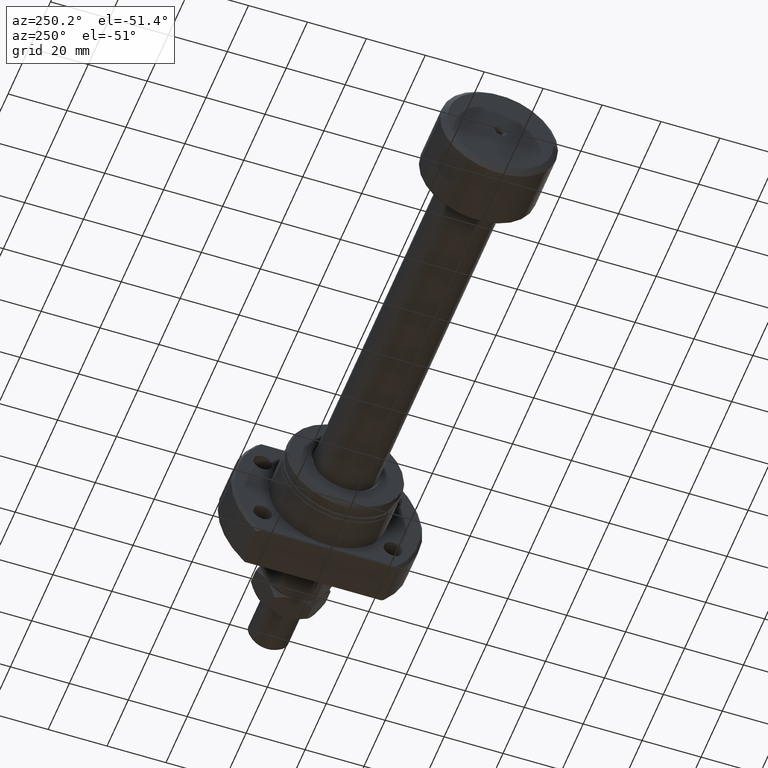
[diagram: clean part render]
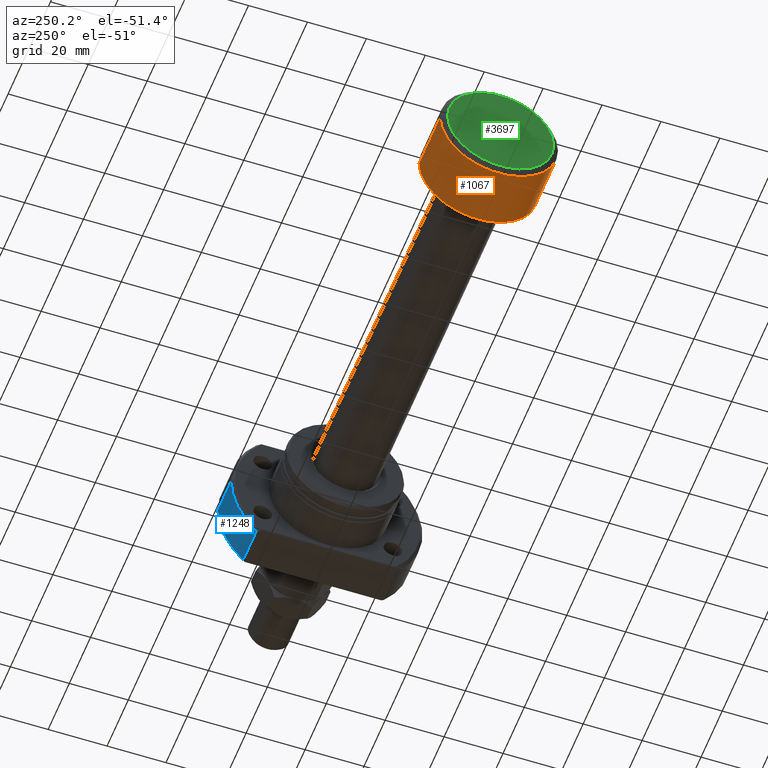
[diagram: same view with three faces highlighted in distinct colors, each labeled with its STEP entity id]
A machine part, auxiliary view with three faces highlighted in distinct colors.
Their STEP definitions:

[orange] entity #1067 — the highlighted cylindrical surface (partial cylindrical patch) has radius 20 mm, axis along (-1, -0, -0).
#5 = AXIS2_PLACEMENT_3D ( 'NONE', #281, #2501, #4087 ) ;
#281 = CARTESIAN_POINT ( 'NONE',  ( 21.40000000000000924, 2.288820569227802283E-16, 0.000000000000000000 ) ) ;
#306 = CARTESIAN_POINT ( 'NONE',  ( 21.40000000000000924, 20.00000000000000000, 2.449293598294706513E-15 ) ) ;
#372 = DIRECTION ( 'NONE',  ( -1.000000000000000000, -1.069542322069065801E-17, -0.000000000000000000 ) ) ;
#542 = ORIENTED_EDGE ( 'NONE', *, *, #4676, .F. ) ;
#547 = ORIENTED_EDGE ( 'NONE', *, *, #3731, .F. ) ;
#764 = FACE_OUTER_BOUND ( 'NONE', #3208, .T. ) ;
#835 = VERTEX_POINT ( 'NONE', #4702 ) ;
#1067 = ADVANCED_FACE ( 'NONE', ( #764 ), #3265, .T. ) ;
#1136 = CARTESIAN_POINT ( 'NONE',  ( 0.000000000000000000, 0.000000000000000000, 0.000000000000000000 ) ) ;
#1186 = ORIENTED_EDGE ( 'NONE', *, *, #3222, .T. ) ;
#1191 = AXIS2_PLACEMENT_3D ( 'NONE', #1591, #4104, #3796 ) ;
#1488 = CIRCLE ( 'NONE', #5, 20.00000000000000000 ) ;
#1541 = VERTEX_POINT ( 'NONE', #306 ) ;
#1591 = CARTESIAN_POINT ( 'NONE',  ( 1.500000000000002442, 1.604313483103601552E-17, 0.000000000000000000 ) ) ;
#1756 = ORIENTED_EDGE ( 'NONE', *, *, #3046, .T. ) ;
#1835 = VERTEX_POINT ( 'NONE', #2035 ) ;
#2035 = CARTESIAN_POINT ( 'NONE',  ( 1.500000000000002442, 20.00000000000000000, 0.000000000000000000 ) ) ;
#2260 = VECTOR ( 'NONE', #4589, 1000.000000000000000 ) ;
#2501 = DIRECTION ( 'NONE',  ( -1.000000000000000000, -1.069542322069065801E-17, -0.000000000000000000 ) ) ;
#2563 = DIRECTION ( 'NONE',  ( 1.069542322069065955E-17, -1.000000000000000000, 0.000000000000000000 ) ) ;
#3033 = LINE ( 'NONE', #3079, #4609 ) ;
#3046 = EDGE_CURVE ( 'NONE', #3068, #835, #3561, .T. ) ;
#3068 = VERTEX_POINT ( 'NONE', #4611 ) ;
#3079 = CARTESIAN_POINT ( 'NONE',  ( -2.139084644138131786E-16, 20.00000000000000000, 2.449293598294706513E-15 ) ) ;
#3208 = EDGE_LOOP ( 'NONE', ( #542, #1186, #1756, #547 ) ) ;
#3222 = EDGE_CURVE ( 'NONE', #1541, #3068, #1488, .T. ) ;
#3265 = CYLINDRICAL_SURFACE ( 'NONE', #4493, 20.00000000000000000 ) ;
#3538 = CARTESIAN_POINT ( 'NONE',  ( 2.139084644138131786E-16, -20.00000000000000000, 0.000000000000000000 ) ) ;
#3561 = LINE ( 'NONE', #3538, #2260 ) ;
#3731 = EDGE_CURVE ( 'NONE', #1835, #835, #3823, .T. ) ;
#3796 = DIRECTION ( 'NONE',  ( 1.084202172485504434E-17, -1.000000000000000000, 0.000000000000000000 ) ) ;
#3823 = CIRCLE ( 'NONE', #1191, 20.00000000000000000 ) ;
#4087 = DIRECTION ( 'NONE',  ( 0.000000000000000000, -1.000000000000000000, 0.000000000000000000 ) ) ;
#4104 = DIRECTION ( 'NONE',  ( -1.000000000000000000, -1.069542322069065801E-17, -0.000000000000000000 ) ) ;
#4485 = DIRECTION ( 'NONE',  ( -1.000000000000000000, -1.069542322069065801E-17, -0.000000000000000000 ) ) ;
#4493 = AXIS2_PLACEMENT_3D ( 'NONE', #1136, #372, #2563 ) ;
#4589 = DIRECTION ( 'NONE',  ( -1.000000000000000000, -1.069542322069065801E-17, -0.000000000000000000 ) ) ;
#4609 = VECTOR ( 'NONE', #4485, 1000.000000000000000 ) ;
#4611 = CARTESIAN_POINT ( 'NONE',  ( 21.40000000000000924, -20.00000000000000000, 0.000000000000000000 ) ) ;
#4676 = EDGE_CURVE ( 'NONE', #1541, #1835, #3033, .T. ) ;
#4702 = CARTESIAN_POINT ( 'NONE',  ( 1.500000000000002887, -20.00000000000000000, 2.449293598294706513E-15 ) ) ;

[blue] entity #1248 — the highlighted cylindrical surface (partial cylindrical patch) has radius 32.5 mm, axis along (1, 0, 0).
#31 = FACE_OUTER_BOUND ( 'NONE', #2010, .T. ) ;
#148 = AXIS2_PLACEMENT_3D ( 'NONE', #1575, #3002, #3072 ) ;
#172 = EDGE_CURVE ( 'NONE', #3606, #1761, #2282, .T. ) ;
#251 = AXIS2_PLACEMENT_3D ( 'NONE', #2166, #360, #751 ) ;
#360 = DIRECTION ( 'NONE',  ( 1.000000000000000000, 2.721437331438560389E-17, -0.000000000000000000 ) ) ;
#362 = ORIENTED_EDGE ( 'NONE', *, *, #4112, .T. ) ;
#707 = CARTESIAN_POINT ( 'NONE',  ( -2.498001805406602216E-13, 23.92174742781216423, -21.99999999999998934 ) ) ;
#751 = DIRECTION ( 'NONE',  ( 0.000000000000000000, 1.000000000000000000, 0.000000000000000000 ) ) ;
#772 = AXIS2_PLACEMENT_3D ( 'NONE', #3252, #4692, #4302 ) ;
#826 = ORIENTED_EDGE ( 'NONE', *, *, #172, .F. ) ;
#892 = CARTESIAN_POINT ( 'NONE',  ( 31.50000000000000000, 32.49999999999990763, 0.000000000000000000 ) ) ;
#1151 = ORIENTED_EDGE ( 'NONE', *, *, #1280, .F. ) ;
#1169 = CIRCLE ( 'NONE', #772, 32.49999999999990763 ) ;
#1196 = CIRCLE ( 'NONE', #251, 32.49999999999990763 ) ;
#1219 = EDGE_CURVE ( 'NONE', #4663, #3438, #3776, .T. ) ;
#1248 = ADVANCED_FACE ( 'NONE', ( #31 ), #3410, .T. ) ;
#1280 = EDGE_CURVE ( 'NONE', #1761, #3438, #1169, .T. ) ;
#1575 = CARTESIAN_POINT ( 'NONE',  ( 31.50000000000000000, 8.572527594031465301E-16, 0.000000000000000000 ) ) ;
#1761 = VERTEX_POINT ( 'NONE', #3834 ) ;
#1917 = CARTESIAN_POINT ( 'NONE',  ( 18.49999999999998934, 32.49999999999990763, 0.000000000000000000 ) ) ;
#2010 = EDGE_LOOP ( 'NONE', ( #362, #2506, #1151, #826 ) ) ;
#2166 = CARTESIAN_POINT ( 'NONE',  ( 18.49999999999998934, 5.034659063161333869E-16, 0.000000000000000000 ) ) ;
#2282 = LINE ( 'NONE', #707, #3388 ) ;
#2372 = DIRECTION ( 'NONE',  ( 1.000000000000000000, 2.721437331438560389E-17, -0.000000000000000000 ) ) ;
#2506 = ORIENTED_EDGE ( 'NONE', *, *, #1219, .T. ) ;
#3002 = DIRECTION ( 'NONE',  ( 1.000000000000000000, 2.721437331438560389E-17, -0.000000000000000000 ) ) ;
#3023 = VECTOR ( 'NONE', #2372, 1000.000000000000000 ) ;
#3072 = DIRECTION ( 'NONE',  ( 0.000000000000000000, 1.000000000000000000, 0.000000000000000000 ) ) ;
#3252 = CARTESIAN_POINT ( 'NONE',  ( 31.00000000000008171, 8.436455727459560039E-16, 0.000000000000000000 ) ) ;
#3382 = CARTESIAN_POINT ( 'NONE',  ( 31.00000000000008171, 32.49999999999990763, 0.000000000000000000 ) ) ;
#3388 = VECTOR ( 'NONE', #4444, 1000.000000000000000 ) ;
#3410 = CYLINDRICAL_SURFACE ( 'NONE', #148, 32.49999999999990763 ) ;
#3438 = VERTEX_POINT ( 'NONE', #3382 ) ;
#3606 = VERTEX_POINT ( 'NONE', #3627 ) ;
#3627 = CARTESIAN_POINT ( 'NONE',  ( 18.49999999999998934, 23.92174742781163133, -21.99999999999998934 ) ) ;
#3776 = LINE ( 'NONE', #892, #3023 ) ;
#3834 = CARTESIAN_POINT ( 'NONE',  ( 31.00000000000007461, 23.92174742781126895, -21.99999999999998934 ) ) ;
#4112 = EDGE_CURVE ( 'NONE', #3606, #4663, #1196, .T. ) ;
#4302 = DIRECTION ( 'NONE',  ( 0.000000000000000000, 1.000000000000000000, 0.000000000000000000 ) ) ;
#4444 = DIRECTION ( 'NONE',  ( 1.000000000000000000, -2.886466111666351885E-14, -0.000000000000000000 ) ) ;
#4663 = VERTEX_POINT ( 'NONE', #1917 ) ;
#4692 = DIRECTION ( 'NONE',  ( 1.000000000000000000, 2.721437331438560389E-17, -0.000000000000000000 ) ) ;

[green] entity #3697 — the highlighted planar face has unit normal (-1, -0, 0).
#24 = PLANE ( 'NONE',  #3270 ) ;
#132 = EDGE_CURVE ( 'NONE', #1869, #3281, #3781, .T. ) ;
#136 = AXIS2_PLACEMENT_3D ( 'NONE', #2936, #1845, #776 ) ;
#365 = DIRECTION ( 'NONE',  ( -1.000000000000000000, -1.069542322069065801E-17, 0.000000000000000000 ) ) ;
#369 = CARTESIAN_POINT ( 'NONE',  ( 1.005923310246402065E-15, 0.000000000000000000, 2.074999999999993516 ) ) ;
#441 = VERTEX_POINT ( 'NONE', #1342 ) ;
#561 = DIRECTION ( 'NONE',  ( 1.069542322069065647E-17, -1.000000000000000000, 0.000000000000000000 ) ) ;
#776 = DIRECTION ( 'NONE',  ( 1.069542322069068574E-17, -1.000000000000000000, 0.000000000000000000 ) ) ;
#1052 = DIRECTION ( 'NONE',  ( 1.069542322069065647E-17, -1.000000000000000000, 0.000000000000000000 ) ) ;
#1107 = FACE_BOUND ( 'NONE', #2394, .T. ) ;
#1321 = DIRECTION ( 'NONE',  ( 1.069542322069068574E-17, -1.000000000000000000, 0.000000000000000000 ) ) ;
#1342 = CARTESIAN_POINT ( 'NONE',  ( 2.204364238465235822E-15, -18.00000000000000355, 2.326828918379971365E-15 ) ) ;
#1489 = ORIENTED_EDGE ( 'NONE', *, *, #4138, .T. ) ;
#1492 = DIRECTION ( 'NONE',  ( 1.069542322069065801E-17, -1.000000000000000000, 0.000000000000000000 ) ) ;
#1776 = VERTEX_POINT ( 'NONE', #4583 ) ;
#1845 = DIRECTION ( 'NONE',  ( 1.000000000000000000, 1.069542322069065801E-17, 0.000000000000000000 ) ) ;
#1869 = VERTEX_POINT ( 'NONE', #2786 ) ;
#2106 = ORIENTED_EDGE ( 'NONE', *, *, #3107, .T. ) ;
#2121 = DIRECTION ( 'NONE',  ( 1.000000000000000000, 1.069542322069065801E-17, 0.000000000000000000 ) ) ;
#2217 = FACE_OUTER_BOUND ( 'NONE', #4033, .T. ) ;
#2268 = AXIS2_PLACEMENT_3D ( 'NONE', #4691, #2121, #1321 ) ;
#2394 = EDGE_LOOP ( 'NONE', ( #3759, #3152 ) ) ;
#2405 = CARTESIAN_POINT ( 'NONE',  ( 2.011846620492804129E-15, 2.151755106128676308E-32, 0.000000000000000000 ) ) ;
#2505 = AXIS2_PLACEMENT_3D ( 'NONE', #4713, #4782, #1052 ) ;
#2786 = CARTESIAN_POINT ( 'NONE',  ( 1.005923310246402065E-15, 2.541142108230750183E-16, -2.074999999999993516 ) ) ;
#2936 = CARTESIAN_POINT ( 'NONE',  ( 1.005923310246402065E-15, 0.000000000000000000, 0.000000000000000000 ) ) ;
#3107 = EDGE_CURVE ( 'NONE', #441, #1776, #3579, .T. ) ;
#3152 = ORIENTED_EDGE ( 'NONE', *, *, #132, .T. ) ;
#3198 = CIRCLE ( 'NONE', #2505, 18.00000000000000355 ) ;
#3270 = AXIS2_PLACEMENT_3D ( 'NONE', #3696, #365, #1492 ) ;
#3281 = VERTEX_POINT ( 'NONE', #369 ) ;
#3423 = AXIS2_PLACEMENT_3D ( 'NONE', #2405, #4194, #561 ) ;
#3579 = CIRCLE ( 'NONE', #3423, 18.00000000000000355 ) ;
#3696 = CARTESIAN_POINT ( 'NONE',  ( 1.005923310246402065E-15, 1.075877553064338154E-32, 0.000000000000000000 ) ) ;
#3697 = ADVANCED_FACE ( 'NONE', ( #1107, #2217 ), #24, .T. ) ;
#3759 = ORIENTED_EDGE ( 'NONE', *, *, #3972, .T. ) ;
#3781 = CIRCLE ( 'NONE', #136, 2.074999999999993516 ) ;
#3972 = EDGE_CURVE ( 'NONE', #3281, #1869, #4047, .T. ) ;
#4033 = EDGE_LOOP ( 'NONE', ( #1489, #2106 ) ) ;
#4047 = CIRCLE ( 'NONE', #2268, 2.074999999999993516 ) ;
#4138 = EDGE_CURVE ( 'NONE', #1776, #441, #3198, .T. ) ;
#4194 = DIRECTION ( 'NONE',  ( -1.000000000000000000, -1.069542322069065801E-17, -0.000000000000000000 ) ) ;
#4583 = CARTESIAN_POINT ( 'NONE',  ( 1.819329002520372041E-15, 18.00000000000000355, 0.000000000000000000 ) ) ;
#4691 = CARTESIAN_POINT ( 'NONE',  ( 1.005923310246402065E-15, 0.000000000000000000, 0.000000000000000000 ) ) ;
#4713 = CARTESIAN_POINT ( 'NONE',  ( 2.011846620492804129E-15, 2.151755106128676308E-32, 0.000000000000000000 ) ) ;
#4782 = DIRECTION ( 'NONE',  ( -1.000000000000000000, -1.069542322069065801E-17, -0.000000000000000000 ) ) ;